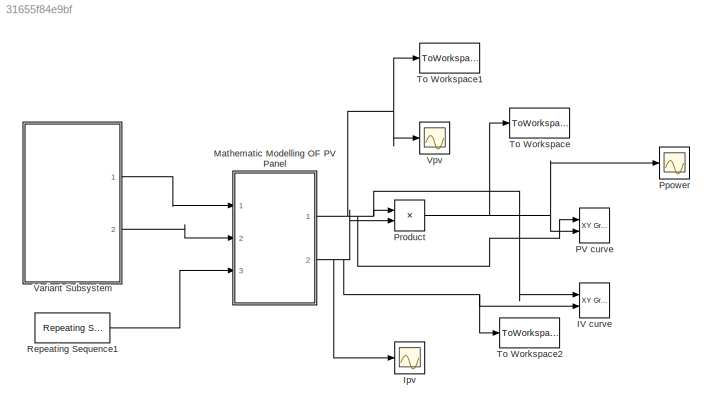
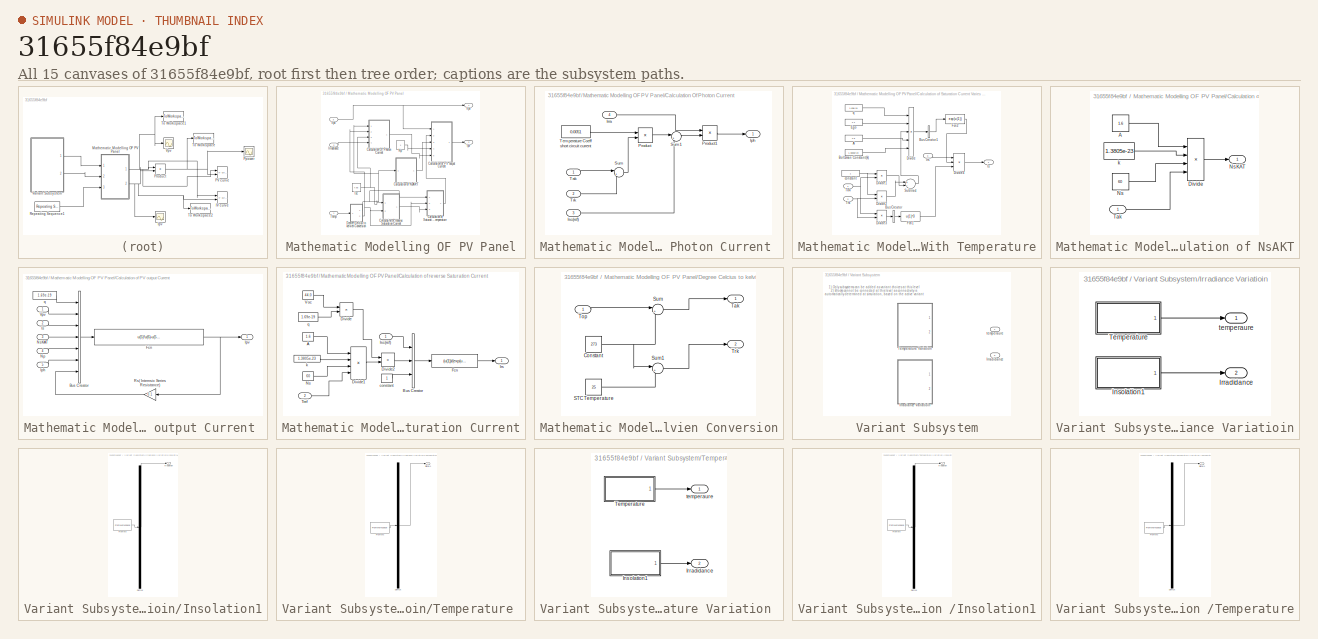
[diagram: thumbnail index - all 15 canvases of the model, root first then tree order]
MODEL slx_31655f84e9bf
KIND model
BLOCK [Reference] IV curve  REF=simulink/Sinks/XY Graph
  Ports = [2]
  SourceBlock = simulink/Sinks/XY Graph
  SourceType = XY scope.
  st = -1
  xmax = 45
  xmin = 0
  ymax = 20
  ymin = 0
BLOCK [Scope] Ipv
  Floating = off
  NumInputPorts = 1
  Ports = [1]
  SaveName = ScopeData1
  ShowLegends = off
BLOCK [SubSystem] Mathematic Modelling OF PV Panel
  Ports = [3, 2]
  RequestExecContextInheritance = off
BLOCK [SubSystem] Mathematic Modelling OF PV Panel/Calculation Of Photon Current 
  Ports = [4, 1]
  RequestExecContextInheritance = off
BLOCK [Outport] Mathematic Modelling OF PV Panel/Calculation Of Photon Current /Iph
  IconDisplay = Port number
BLOCK [Inport] Mathematic Modelling OF PV Panel/Calculation Of Photon Current /Irra
  IconDisplay = Port number
  Port = 4
BLOCK [Inport] Mathematic Modelling OF PV Panel/Calculation Of Photon Current /Isc(ref)
  IconDisplay = Port number
  Port = 3
BLOCK [Product] Mathematic Modelling OF PV Panel/Calculation Of Photon Current /Product
  InputSameDT = off
  OutDataTypeStr = Inherit: Inherit via internal rule
  Ports = [2, 1]
  RndMeth = Floor
  SaturateOnIntegerOverflow = off
BLOCK [Product] Mathematic Modelling OF PV Panel/Calculation Of Photon Current /Product1
  InputSameDT = off
  OutDataTypeStr = Inherit: Inherit via internal rule
  Ports = [2, 1]
  RndMeth = Floor
  SaturateOnIntegerOverflow = off
BLOCK [Sum] Mathematic Modelling OF PV Panel/Calculation Of Photon Current /Sum
  IconShape = round
  InputSameDT = off
  Inputs = |+-
  OutDataTypeStr = Inherit: Inherit via internal rule
  Ports = [2, 1]
  SaturateOnIntegerOverflow = off
BLOCK [Sum] Mathematic Modelling OF PV Panel/Calculation Of Photon Current /Sum1
  IconShape = round
  InputSameDT = off
  Inputs = |++
  OutDataTypeStr = Inherit: Inherit via internal rule
  Ports = [2, 1]
  SaturateOnIntegerOverflow = off
BLOCK [Inport] Mathematic Modelling OF PV Panel/Calculation Of Photon Current /Tak
  IconDisplay = Port number
BLOCK [Constant] Mathematic Modelling OF PV Panel/Calculation Of Photon Current /Temperature Coeff short circuit current 
  Value = 0.0051
BLOCK [Inport] Mathematic Modelling OF PV Panel/Calculation Of Photon Current /Trk
  IconDisplay = Port number
  Port = 2
BLOCK [SubSystem] Mathematic Modelling OF PV Panel/Calculation of NsAKT
  Ports = [1, 1]
  RequestExecContextInheritance = off
BLOCK [Constant] Mathematic Modelling OF PV Panel/Calculation of NsAKT/A
  Value = 1.6
BLOCK [Product] Mathematic Modelling OF PV Panel/Calculation of NsAKT/Divide
  InputSameDT = off
  Inputs = ****
  OutDataTypeStr = Inherit: Inherit via internal rule
  Ports = [4, 1]
  RndMeth = Floor
  SaturateOnIntegerOverflow = off
BLOCK [Constant] Mathematic Modelling OF PV Panel/Calculation of NsAKT/Ns
  Value = 60
BLOCK [Outport] Mathematic Modelling OF PV Panel/Calculation of NsAKT/NsKAT
  IconDisplay = Port number
BLOCK [Inport] Mathematic Modelling OF PV Panel/Calculation of NsAKT/Tak 
  IconDisplay = Port number
BLOCK [Constant] Mathematic Modelling OF PV Panel/Calculation of NsAKT/k
  Value = 1.3805e-23
BLOCK [SubSystem] Mathematic Modelling OF PV Panel/Calculation of PV output Current 
  Ports = [5, 1]
  RequestExecContextInheritance = off
BLOCK [BusCreator] Mathematic Modelling OF PV Panel/Calculation of PV output Current /Bus Creator
  DisplayOption = bar
  Inputs = 7
  Ports = [7, 1]
BLOCK [Fcn] Mathematic Modelling OF PV Panel/Calculation of PV output Current /Fcn
  Expr = u(5)*u(6)-u(5)*u(3)*(exp((u(1)*(u(2)+u(7)))/(u(4))) - 1)
BLOCK [Inport] Mathematic Modelling OF PV Panel/Calculation of PV output Current /Iph
  IconDisplay = Port number
  Port = 5
BLOCK [Outport] Mathematic Modelling OF PV Panel/Calculation of PV output Current /Ipv 
  IconDisplay = Port number
BLOCK [Inport] Mathematic Modelling OF PV Panel/Calculation of PV output Current /Is
  IconDisplay = Port number
  Port = 2
BLOCK [Inport] Mathematic Modelling OF PV Panel/Calculation of PV output Current /Np
  IconDisplay = Port number
  Port = 4
BLOCK [Inport] Mathematic Modelling OF PV Panel/Calculation of PV output Current /NsKAT
  IconDisplay = Port number
  Port = 3
BLOCK [Gain] Mathematic Modelling OF PV Panel/Calculation of PV output Current /Rs( Internsic Series Resistance)
  Gain = 0.1
  OutDataTypeStr = Inherit: Inherit via internal rule
  ParamDataTypeStr = Inherit: Inherit via internal rule
  SaturateOnIntegerOverflow = off
BLOCK [Inport] Mathematic Modelling OF PV Panel/Calculation of PV output Current /Vpv
  IconDisplay = Port number
BLOCK [Constant] Mathematic Modelling OF PV Panel/Calculation of PV output Current /q
  Value = 1.69e-19
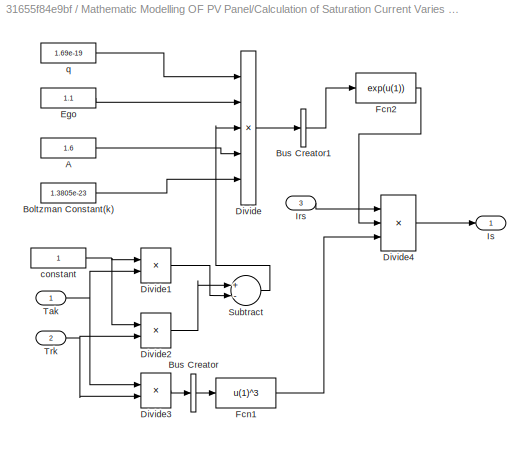
BLOCK [SubSystem] Mathematic Modelling OF PV Panel/Calculation of Saturation Current Varies With Temperature
  Ports = [3, 1]
  RequestExecContextInheritance = off
BLOCK [Constant] Mathematic Modelling OF PV Panel/Calculation of Saturation Current Varies With Temperature/A 
  Value = 1.6
BLOCK [Constant] Mathematic Modelling OF PV Panel/Calculation of Saturation Current Varies With Temperature/Boltzman Constant(k)
  Value = 1.3805e-23
BLOCK [BusCreator] Mathematic Modelling OF PV Panel/Calculation of Saturation Current Varies With Temperature/Bus Creator
  DisplayOption = bar
  Inputs = 1
  Ports = [1, 1]
BLOCK [BusCreator] Mathematic Modelling OF PV Panel/Calculation of Saturation Current Varies With Temperature/Bus Creator1
  DisplayOption = bar
  Inputs = 1
  Ports = [1, 1]
BLOCK [Product] Mathematic Modelling OF PV Panel/Calculation of Saturation Current Varies With Temperature/Divide
  InputSameDT = off
  Inputs = ***//
  OutDataTypeStr = Inherit: Inherit via internal rule
  Ports = [5, 1]
  RndMeth = Floor
  SaturateOnIntegerOverflow = off
BLOCK [Product] Mathematic Modelling OF PV Panel/Calculation of Saturation Current Varies With Temperature/Divide1
  InputSameDT = off
  Inputs = */
  OutDataTypeStr = Inherit: Inherit via internal rule
  Ports = [2, 1]
  RndMeth = Floor
  SaturateOnIntegerOverflow = off
BLOCK [Product] Mathematic Modelling OF PV Panel/Calculation of Saturation Current Varies With Temperature/Divide2
  InputSameDT = off
  Inputs = */
  OutDataTypeStr = Inherit: Inherit via internal rule
  Ports = [2, 1]
  RndMeth = Floor
  SaturateOnIntegerOverflow = off
BLOCK [Product] Mathematic Modelling OF PV Panel/Calculation of Saturation Current Varies With Temperature/Divide3
  InputSameDT = off
  Inputs = */
  OutDataTypeStr = Inherit: Inherit via internal rule
  Ports = [2, 1]
  RndMeth = Floor
  SaturateOnIntegerOverflow = off
BLOCK [Product] Mathematic Modelling OF PV Panel/Calculation of Saturation Current Varies With Temperature/Divide4
  InputSameDT = off
  Inputs = ***
  OutDataTypeStr = Inherit: Inherit via internal rule
  Ports = [3, 1]
  RndMeth = Floor
  SaturateOnIntegerOverflow = off
BLOCK [Constant] Mathematic Modelling OF PV Panel/Calculation of Saturation Current Varies With Temperature/Ego
  Value = 1.1
BLOCK [Fcn] Mathematic Modelling OF PV Panel/Calculation of Saturation Current Varies With Temperature/Fcn1
  Expr = u(1)^3
BLOCK [Fcn] Mathematic Modelling OF PV Panel/Calculation of Saturation Current Varies With Temperature/Fcn2
  Expr = exp(u(1))
BLOCK [Inport] Mathematic Modelling OF PV Panel/Calculation of Saturation Current Varies With Temperature/Irs 
  IconDisplay = Port number
  Port = 3
BLOCK [Outport] Mathematic Modelling OF PV Panel/Calculation of Saturation Current Varies With Temperature/Is
  IconDisplay = Port number
BLOCK [Sum] Mathematic Modelling OF PV Panel/Calculation of Saturation Current Varies With Temperature/Subtract
  InputSameDT = off
  Inputs = +-
  OutDataTypeStr = Inherit: Inherit via internal rule
  Ports = [2, 1]
  SaturateOnIntegerOverflow = off
BLOCK [Inport] Mathematic Modelling OF PV Panel/Calculation of Saturation Current Varies With Temperature/Tak
  IconDisplay = Port number
BLOCK [Inport] Mathematic Modelling OF PV Panel/Calculation of Saturation Current Varies With Temperature/Trk 
  IconDisplay = Port number
  Port = 2
BLOCK [Constant] Mathematic Modelling OF PV Panel/Calculation of Saturation Current Varies With Temperature/constant 
BLOCK [Constant] Mathematic Modelling OF PV Panel/Calculation of Saturation Current Varies With Temperature/q 
  Value = 1.69e-19
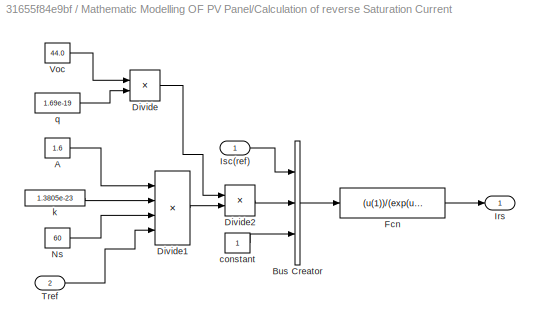
BLOCK [SubSystem] Mathematic Modelling OF PV Panel/Calculation of reverse Saturation Current
  Ports = [2, 1]
  RequestExecContextInheritance = off
BLOCK [Constant] Mathematic Modelling OF PV Panel/Calculation of reverse Saturation Current/A
  Value = 1.6
BLOCK [BusCreator] Mathematic Modelling OF PV Panel/Calculation of reverse Saturation Current/Bus Creator
  DisplayOption = bar
  Inputs = 3
  Ports = [3, 1]
BLOCK [Product] Mathematic Modelling OF PV Panel/Calculation of reverse Saturation Current/Divide
  InputSameDT = off
  Inputs = **
  OutDataTypeStr = Inherit: Inherit via internal rule
  Ports = [2, 1]
  RndMeth = Floor
  SaturateOnIntegerOverflow = off
BLOCK [Product] Mathematic Modelling OF PV Panel/Calculation of reverse Saturation Current/Divide1
  InputSameDT = off
  Inputs = ****
  OutDataTypeStr = Inherit: Inherit via internal rule
  Ports = [4, 1]
  RndMeth = Floor
  SaturateOnIntegerOverflow = off
BLOCK [Product] Mathematic Modelling OF PV Panel/Calculation of reverse Saturation Current/Divide2
  InputSameDT = off
  Inputs = */
  OutDataTypeStr = Inherit: Inherit via internal rule
  Ports = [2, 1]
  RndMeth = Floor
  SaturateOnIntegerOverflow = off
BLOCK [Fcn] Mathematic Modelling OF PV Panel/Calculation of reverse Saturation Current/Fcn
  Expr = (u(1))/(exp(u(2))-u(3))
BLOCK [Outport] Mathematic Modelling OF PV Panel/Calculation of reverse Saturation Current/Irs
  IconDisplay = Port number
BLOCK [Inport] Mathematic Modelling OF PV Panel/Calculation of reverse Saturation Current/Isc(ref) 
  IconDisplay = Port number
BLOCK [Constant] Mathematic Modelling OF PV Panel/Calculation of reverse Saturation Current/Ns
  Value = 60
BLOCK [Inport] Mathematic Modelling OF PV Panel/Calculation of reverse Saturation Current/Tref 
  IconDisplay = Port number
  Port = 2
BLOCK [Constant] Mathematic Modelling OF PV Panel/Calculation of reverse Saturation Current/Voc
  Value = 44.0
BLOCK [Constant] Mathematic Modelling OF PV Panel/Calculation of reverse Saturation Current/constant 
BLOCK [Constant] Mathematic Modelling OF PV Panel/Calculation of reverse Saturation Current/k
  Value = 1.3805e-23
BLOCK [Constant] Mathematic Modelling OF PV Panel/Calculation of reverse Saturation Current/q
  Value = 1.69e-19
BLOCK [SubSystem] Mathematic Modelling OF PV Panel/Degree Celcius to kelvien Conversion
  Ports = [1, 2]
  RequestExecContextInheritance = off
BLOCK [Constant] Mathematic Modelling OF PV Panel/Degree Celcius to kelvien Conversion/Constant
  Value = 273
BLOCK [Constant] Mathematic Modelling OF PV Panel/Degree Celcius to kelvien Conversion/STC Temperature
  Value = 25
BLOCK [Sum] Mathematic Modelling OF PV Panel/Degree Celcius to kelvien Conversion/Sum
  IconShape = round
  InputSameDT = off
  Inputs = |++
  OutDataTypeStr = Inherit: Inherit via internal rule
  Ports = [2, 1]
  SaturateOnIntegerOverflow = off
BLOCK [Sum] Mathematic Modelling OF PV Panel/Degree Celcius to kelvien Conversion/Sum1
  IconShape = round
  InputSameDT = off
  Inputs = |++
  OutDataTypeStr = Inherit: Inherit via internal rule
  Ports = [2, 1]
  SaturateOnIntegerOverflow = off
BLOCK [Outport] Mathematic Modelling OF PV Panel/Degree Celcius to kelvien Conversion/Tak
  IconDisplay = Port number
BLOCK [Inport] Mathematic Modelling OF PV Panel/Degree Celcius to kelvien Conversion/Top 
  IconDisplay = Port number
BLOCK [Outport] Mathematic Modelling OF PV Panel/Degree Celcius to kelvien Conversion/Trk
  IconDisplay = Port number
  Port = 2
BLOCK [Outport] Mathematic Modelling OF PV Panel/Ipv
  IconDisplay = Port number
  Port = 2
BLOCK [Inport] Mathematic Modelling OF PV Panel/Irradiance
  IconDisplay = Port number
  Port = 2
BLOCK [Constant] Mathematic Modelling OF PV Panel/Isc
  Value = 7.58
BLOCK [Constant] Mathematic Modelling OF PV Panel/Np
BLOCK [Inport] Mathematic Modelling OF PV Panel/Temp
  IconDisplay = Port number
BLOCK [Inport] Mathematic Modelling OF PV Panel/Vpv
  IconDisplay = Port number
  Port = 3
BLOCK [Outport] Mathematic Modelling OF PV Panel/Vpv 
  IconDisplay = Port number
BLOCK [Reference] PV curve  REF=simulink/Sinks/XY Graph
  Ports = [2]
  SourceBlock = simulink/Sinks/XY Graph
  SourceType = XY scope.
  st = -1
  xmax = 45
  xmin = 0
  ymax = 300
  ymin = 0
BLOCK [Scope] Ppower 
  Floating = off
  NumInputPorts = 1
  Ports = [1]
  SaveName = ScopeData2
  ShowLegends = off
BLOCK [Product] Product
  InputSameDT = off
  OutDataTypeStr = Inherit: Inherit via internal rule
  Ports = [2, 1]
  RndMeth = Floor
  SaturateOnIntegerOverflow = off
BLOCK [Reference] Repeating Sequence1  REF=simulink/Sources/Repeating
Sequence
  Ports = [0, 1]
  SourceBlock = simulink/Sources/Repeating\nSequence
  SourceType = Repeating table
  rep_seq_t = [0 2 4]
  rep_seq_y = [0 45 0]
BLOCK [ToWorkspace] To Workspace
  FixptAsFi = on
  MaxDataPoints = inf
  Ports = [1]
  SampleTime = -1
  Save2DSignal = 3-D array (concatenate along third dimension)
  SaveFormat = Timeseries
  VariableName = Ppv
BLOCK [ToWorkspace] To Workspace1
  FixptAsFi = on
  MaxDataPoints = inf
  Ports = [1]
  SampleTime = -1
  Save2DSignal = 3-D array (concatenate along third dimension)
  SaveFormat = Timeseries
  VariableName = Vpv
BLOCK [ToWorkspace] To Workspace2
  FixptAsFi = on
  MaxDataPoints = inf
  Ports = [1]
  SampleTime = -1
  Save2DSignal = 3-D array (concatenate along third dimension)
  SaveFormat = Timeseries
  VariableName = Ipv
BLOCK [SubSystem] Variant Subsystem
  Ports = [0, 2]
  RequestExecContextInheritance = off
  Variant = on
BLOCK [SubSystem] Variant Subsystem/Irradiance Variatioin
  Ports = [0, 2]
  RequestExecContextInheritance = off
  TreatAsAtomicUnit = on
  VariantControl = Irradiance
BLOCK [SubSystem] Variant Subsystem/Irradiance Variatioin/Insolation1
  ClipboardFcn = sigbuilder_block('clipboard');
  CloseFcn = sigbuilder_block('close');
  ContinueFcn = sigbuilder_block('continue')
  CopyFcn = sigbuilder_block('copy');
  DeleteFcn = sigbuilder_block('delete');
  LoadFcn = sigbuilder_block('load');
  MaskHideContents = on
  ModelCloseFcn = sigbuilder_block('modelClose');
  NameChangeFcn = sigbuilder_block('namechange');
  OpenFcn = sigbuilder_block('open',[211.5 118.5 550.5 394.5 ]);
  PauseFcn = sigbuilder_block('pause')
  Ports = [0, 1]
  PreSaveFcn = sigbuilder_block('preSave');
  RequestExecContextInheritance = off
  StartFcn = sigbuilder_block('start');
  StopFcn = sigbuilder_block('stop');
  Tag = STV Subsys
BLOCK [Demux] Variant Subsystem/Irradiance Variatioin/Insolation1/Demux
  Outputs = 1
  Ports = [1, 1]
  Tag = STV Demux
BLOCK [FromWorkspace] Variant Subsystem/Irradiance Variatioin/Insolation1/FromWs
  SampleTime = 0
  Tag = STV FromWs
  VariableName = tuvar
  ZeroCross = on
BLOCK [Outport] Variant Subsystem/Irradiance Variatioin/Insolation1/irradiation
  IconDisplay = Port number
  Tag = STV Outport
BLOCK [Outport] Variant Subsystem/Irradiance Variatioin/Irradidance 
  IconDisplay = Port number
  Port = 2
BLOCK [SubSystem] Variant Subsystem/Irradiance Variatioin/Temperature 
  ClipboardFcn = sigbuilder_block('clipboard');
  CloseFcn = sigbuilder_block('close');
  ContinueFcn = sigbuilder_block('continue');
  CopyFcn = sigbuilder_block('copy');
  DeleteFcn = sigbuilder_block('delete');
  LoadFcn = sigbuilder_block('load');
  MaskHideContents = on
  ModelCloseFcn = sigbuilder_block('modelClose');
  NameChangeFcn = sigbuilder_block('namechange');
  OpenFcn = sigbuilder_block('open',[351 -51.75 543 385.5 ]);
  PauseFcn = sigbuilder_block('pause');
  Ports = [0, 1]
  PreSaveFcn = sigbuilder_block('preSave');
  RequestExecContextInheritance = off
  StartFcn = sigbuilder_block('start');
  StopFcn = sigbuilder_block('stop');
  Tag = STV Subsys
BLOCK [Demux] Variant Subsystem/Irradiance Variatioin/Temperature /Demux
  Outputs = 1
  Ports = [1, 1]
  Tag = STV Demux
BLOCK [FromWorkspace] Variant Subsystem/Irradiance Variatioin/Temperature /FromWs
  SampleTime = 0
  Tag = STV FromWs
  VariableName = tuvar
  ZeroCross = on
BLOCK [Outport] Variant Subsystem/Irradiance Variatioin/Temperature /Signal 1
  IconDisplay = Port number
  Tag = STV Outport
BLOCK [Outport] Variant Subsystem/Irradiance Variatioin/temperaure
  IconDisplay = Port number
BLOCK [Outport] Variant Subsystem/Irradidance 
  IconDisplay = Port number
  Port = 2
BLOCK [SubSystem] Variant Subsystem/Temperature Variation 
  Ports = [0, 2]
  RequestExecContextInheritance = off
  TreatAsAtomicUnit = on
  VariantControl = Temperature
BLOCK [SubSystem] Variant Subsystem/Temperature Variation /Insolation1
  ClipboardFcn = sigbuilder_block('clipboard');
  CloseFcn = sigbuilder_block('close');
  ContinueFcn = sigbuilder_block('continue')
  CopyFcn = sigbuilder_block('copy');
  DeleteFcn = sigbuilder_block('delete');
  LoadFcn = sigbuilder_block('load');
  MaskHideContents = on
  ModelCloseFcn = sigbuilder_block('modelClose');
  NameChangeFcn = sigbuilder_block('namechange');
  OpenFcn = sigbuilder_block('open',[557.25 17.25 550.5 394.5 ]);
  PauseFcn = sigbuilder_block('pause')
  Ports = [0, 1]
  PreSaveFcn = sigbuilder_block('preSave');
  RequestExecContextInheritance = off
  StartFcn = sigbuilder_block('start');
  StopFcn = sigbuilder_block('stop');
  Tag = STV Subsys
BLOCK [Demux] Variant Subsystem/Temperature Variation /Insolation1/Demux
  Outputs = 1
  Ports = [1, 1]
  Tag = STV Demux
BLOCK [FromWorkspace] Variant Subsystem/Temperature Variation /Insolation1/FromWs
  SampleTime = 0
  Tag = STV FromWs
  VariableName = tuvar
  ZeroCross = on
BLOCK [Outport] Variant Subsystem/Temperature Variation /Insolation1/irradiation
  IconDisplay = Port number
  Tag = STV Outport
BLOCK [Outport] Variant Subsystem/Temperature Variation /Irradidance 
  IconDisplay = Port number
  Port = 2
BLOCK [SubSystem] Variant Subsystem/Temperature Variation /Temperature
  ClipboardFcn = sigbuilder_block('clipboard');
  CloseFcn = sigbuilder_block('close');
  ContinueFcn = sigbuilder_block('continue');
  CopyFcn = sigbuilder_block('copy');
  DeleteFcn = sigbuilder_block('delete');
  LoadFcn = sigbuilder_block('load');
  MaskHideContents = on
  ModelCloseFcn = sigbuilder_block('modelClose');
  NameChangeFcn = sigbuilder_block('namechange');
  OpenFcn = sigbuilder_block('open',[437.25 180 550.5 395.25 ]);
  PauseFcn = sigbuilder_block('pause');
  Ports = [0, 1]
  PreSaveFcn = sigbuilder_block('preSave');
  RequestExecContextInheritance = off
  StartFcn = sigbuilder_block('start');
  StopFcn = sigbuilder_block('stop');
  Tag = STV Subsys
BLOCK [Demux] Variant Subsystem/Temperature Variation /Temperature/Demux
  Outputs = 1
  Ports = [1, 1]
  Tag = STV Demux
BLOCK [FromWorkspace] Variant Subsystem/Temperature Variation /Temperature/FromWs
  SampleTime = 0
  Tag = STV FromWs
  VariableName = tuvar
  ZeroCross = on
BLOCK [Outport] Variant Subsystem/Temperature Variation /Temperature/Signal 1
  IconDisplay = Port number
  Tag = STV Outport
BLOCK [Outport] Variant Subsystem/Temperature Variation /temperaure
  IconDisplay = Port number
BLOCK [Outport] Variant Subsystem/temperaure
  IconDisplay = Port number
BLOCK [Scope] Vpv
  Floating = off
  NumInputPorts = 1
  Ports = [1]
  ShowLegends = off
ANNOTATION Variant Subsystem: 1) Only subsystems can be added as variant choices at this level 2) Blocks cannot be connected at this level as connectivity is automatically determined at simulation, based on the active variant
LINE Mathematic Modelling OF PV Panel/Calculation Of Photon Current /Irra:1 -> Mathematic Modelling OF PV Panel/Calculation Of Photon Current /Product1:1
LINE Mathematic Modelling OF PV Panel/Calculation Of Photon Current /Isc(ref):1 -> Mathematic Modelling OF PV Panel/Calculation Of Photon Current /Sum1:2
LINE Mathematic Modelling OF PV Panel/Calculation Of Photon Current /Product1:1 -> Mathematic Modelling OF PV Panel/Calculation Of Photon Current /Iph:1
LINE Mathematic Modelling OF PV Panel/Calculation Of Photon Current /Product:1 -> Mathematic Modelling OF PV Panel/Calculation Of Photon Current /Sum1:1
LINE Mathematic Modelling OF PV Panel/Calculation Of Photon Current /Sum1:1 -> Mathematic Modelling OF PV Panel/Calculation Of Photon Current /Product1:2
LINE Mathematic Modelling OF PV Panel/Calculation Of Photon Current /Sum:1 -> Mathematic Modelling OF PV Panel/Calculation Of Photon Current /Product:2
LINE Mathematic Modelling OF PV Panel/Calculation Of Photon Current /Tak:1 -> Mathematic Modelling OF PV Panel/Calculation Of Photon Current /Sum:1
LINE Mathematic Modelling OF PV Panel/Calculation Of Photon Current /Temperature Coeff short circuit current :1 -> Mathematic Modelling OF PV Panel/Calculation Of Photon Current /Product:1
LINE Mathematic Modelling OF PV Panel/Calculation Of Photon Current /Trk:1 -> Mathematic Modelling OF PV Panel/Calculation Of Photon Current /Sum:2
LINE Mathematic Modelling OF PV Panel/Calculation Of Photon Current :1 -> Mathematic Modelling OF PV Panel/Calculation of PV output Current :5
LINE Mathematic Modelling OF PV Panel/Calculation of NsAKT/A:1 -> Mathematic Modelling OF PV Panel/Calculation of NsAKT/Divide:1
LINE Mathematic Modelling OF PV Panel/Calculation of NsAKT/Divide:1 -> Mathematic Modelling OF PV Panel/Calculation of NsAKT/NsKAT:1
LINE Mathematic Modelling OF PV Panel/Calculation of NsAKT/Ns:1 -> Mathematic Modelling OF PV Panel/Calculation of NsAKT/Divide:3
LINE Mathematic Modelling OF PV Panel/Calculation of NsAKT/Tak :1 -> Mathematic Modelling OF PV Panel/Calculation of NsAKT/Divide:4
LINE Mathematic Modelling OF PV Panel/Calculation of NsAKT/k:1 -> Mathematic Modelling OF PV Panel/Calculation of NsAKT/Divide:2
LINE Mathematic Modelling OF PV Panel/Calculation of NsAKT:1 -> Mathematic Modelling OF PV Panel/Calculation of PV output Current :3
LINE Mathematic Modelling OF PV Panel/Calculation of PV output Current /Bus Creator:1 -> Mathematic Modelling OF PV Panel/Calculation of PV output Current /Fcn:1
NET Mathematic Modelling OF PV Panel/Calculation of PV output Current /Fcn:1 -> Mathematic Modelling OF PV Panel/Calculation of PV output Current /Ipv :1, Mathematic Modelling OF PV Panel/Calculation of PV output Current /Rs( Internsic Series Resistance):1
LINE Mathematic Modelling OF PV Panel/Calculation of PV output Current /Iph:1 -> Mathematic Modelling OF PV Panel/Calculation of PV output Current /Bus Creator:6
LINE Mathematic Modelling OF PV Panel/Calculation of PV output Current /Is:1 -> Mathematic Modelling OF PV Panel/Calculation of PV output Current /Bus Creator:3
LINE Mathematic Modelling OF PV Panel/Calculation of PV output Current /Np:1 -> Mathematic Modelling OF PV Panel/Calculation of PV output Current /Bus Creator:5
LINE Mathematic Modelling OF PV Panel/Calculation of PV output Current /NsKAT:1 -> Mathematic Modelling OF PV Panel/Calculation of PV output Current /Bus Creator:4
LINE Mathematic Modelling OF PV Panel/Calculation of PV output Current /Rs( Internsic Series Resistance):1 -> Mathematic Modelling OF PV Panel/Calculation of PV output Current /Bus Creator:7
LINE Mathematic Modelling OF PV Panel/Calculation of PV output Current /Vpv:1 -> Mathematic Modelling OF PV Panel/Calculation of PV output Current /Bus Creator:2
LINE Mathematic Modelling OF PV Panel/Calculation of PV output Current /q:1 -> Mathematic Modelling OF PV Panel/Calculation of PV output Current /Bus Creator:1
LINE Mathematic Modelling OF PV Panel/Calculation of PV output Current :1 -> Mathematic Modelling OF PV Panel/Ipv:1
LINE Mathematic Modelling OF PV Panel/Calculation of Saturation Current Varies With Temperature/A :1 -> Mathematic Modelling OF PV Panel/Calculation of Saturation Current Varies With Temperature/Divide:4
LINE Mathematic Modelling OF PV Panel/Calculation of Saturation Current Varies With Temperature/Boltzman Constant(k):1 -> Mathematic Modelling OF PV Panel/Calculation of Saturation Current Varies With Temperature/Divide:5
LINE Mathematic Modelling OF PV Panel/Calculation of Saturation Current Varies With Temperature/Bus Creator1:1 -> Mathematic Modelling OF PV Panel/Calculation of Saturation Current Varies With Temperature/Fcn2:1
LINE Mathematic Modelling OF PV Panel/Calculation of Saturation Current Varies With Temperature/Bus Creator:1 -> Mathematic Modelling OF PV Panel/Calculation of Saturation Current Varies With Temperature/Fcn1:1
LINE Mathematic Modelling OF PV Panel/Calculation of Saturation Current Varies With Temperature/Divide1:1 -> Mathematic Modelling OF PV Panel/Calculation of Saturation Current Varies With Temperature/Subtract:2
LINE Mathematic Modelling OF PV Panel/Calculation of Saturation Current Varies With Temperature/Divide2:1 -> Mathematic Modelling OF PV Panel/Calculation of Saturation Current Varies With Temperature/Subtract:1
LINE Mathematic Modelling OF PV Panel/Calculation of Saturation Current Varies With Temperature/Divide3:1 -> Mathematic Modelling OF PV Panel/Calculation of Saturation Current Varies With Temperature/Bus Creator:1
LINE Mathematic Modelling OF PV Panel/Calculation of Saturation Current Varies With Temperature/Divide4:1 -> Mathematic Modelling OF PV Panel/Calculation of Saturation Current Varies With Temperature/Is:1
LINE Mathematic Modelling OF PV Panel/Calculation of Saturation Current Varies With Temperature/Divide:1 -> Mathematic Modelling OF PV Panel/Calculation of Saturation Current Varies With Temperature/Bus Creator1:1
LINE Mathematic Modelling OF PV Panel/Calculation of Saturation Current Varies With Temperature/Ego:1 -> Mathematic Modelling OF PV Panel/Calculation of Saturation Current Varies With Temperature/Divide:2
LINE Mathematic Modelling OF PV Panel/Calculation of Saturation Current Varies With Temperature/Fcn1:1 -> Mathematic Modelling OF PV Panel/Calculation of Saturation Current Varies With Temperature/Divide4:3
LINE Mathematic Modelling OF PV Panel/Calculation of Saturation Current Varies With Temperature/Fcn2:1 -> Mathematic Modelling OF PV Panel/Calculation of Saturation Current Varies With Temperature/Divide4:2
LINE Mathematic Modelling OF PV Panel/Calculation of Saturation Current Varies With Temperature/Irs :1 -> Mathematic Modelling OF PV Panel/Calculation of Saturation Current Varies With Temperature/Divide4:1
LINE Mathematic Modelling OF PV Panel/Calculation of Saturation Current Varies With Temperature/Subtract:1 -> Mathematic Modelling OF PV Panel/Calculation of Saturation Current Varies With Temperature/Divide:3
NET Mathematic Modelling OF PV Panel/Calculation of Saturation Current Varies With Temperature/Tak:1 -> Mathematic Modelling OF PV Panel/Calculation of Saturation Current Varies With Temperature/Divide1:2, Mathematic Modelling OF PV Panel/Calculation of Saturation Current Varies With Temperature/Divide3:1
NET Mathematic Modelling OF PV Panel/Calculation of Saturation Current Varies With Temperature/Trk :1 -> Mathematic Modelling OF PV Panel/Calculation of Saturation Current Varies With Temperature/Divide2:2, Mathematic Modelling OF PV Panel/Calculation of Saturation Current Varies With Temperature/Divide3:2
NET Mathematic Modelling OF PV Panel/Calculation of Saturation Current Varies With Temperature/constant :1 -> Mathematic Modelling OF PV Panel/Calculation of Saturation Current Varies With Temperature/Divide1:1, Mathematic Modelling OF PV Panel/Calculation of Saturation Current Varies With Temperature/Divide2:1
LINE Mathematic Modelling OF PV Panel/Calculation of Saturation Current Varies With Temperature/q :1 -> Mathematic Modelling OF PV Panel/Calculation of Saturation Current Varies With Temperature/Divide:1
LINE Mathematic Modelling OF PV Panel/Calculation of Saturation Current Varies With Temperature:1 -> Mathematic Modelling OF PV Panel/Calculation of PV output Current :2
LINE Mathematic Modelling OF PV Panel/Calculation of reverse Saturation Current/A:1 -> Mathematic Modelling OF PV Panel/Calculation of reverse Saturation Current/Divide1:1
LINE Mathematic Modelling OF PV Panel/Calculation of reverse Saturation Current/Bus Creator:1 -> Mathematic Modelling OF PV Panel/Calculation of reverse Saturation Current/Fcn:1
LINE Mathematic Modelling OF PV Panel/Calculation of reverse Saturation Current/Divide1:1 -> Mathematic Modelling OF PV Panel/Calculation of reverse Saturation Current/Divide2:2
LINE Mathematic Modelling OF PV Panel/Calculation of reverse Saturation Current/Divide2:1 -> Mathematic Modelling OF PV Panel/Calculation of reverse Saturation Current/Bus Creator:2
LINE Mathematic Modelling OF PV Panel/Calculation of reverse Saturation Current/Divide:1 -> Mathematic Modelling OF PV Panel/Calculation of reverse Saturation Current/Divide2:1
LINE Mathematic Modelling OF PV Panel/Calculation of reverse Saturation Current/Fcn:1 -> Mathematic Modelling OF PV Panel/Calculation of reverse Saturation Current/Irs:1
LINE Mathematic Modelling OF PV Panel/Calculation of reverse Saturation Current/Isc(ref) :1 -> Mathematic Modelling OF PV Panel/Calculation of reverse Saturation Current/Bus Creator:1
LINE Mathematic Modelling OF PV Panel/Calculation of reverse Saturation Current/Ns:1 -> Mathematic Modelling OF PV Panel/Calculation of reverse Saturation Current/Divide1:3
LINE Mathematic Modelling OF PV Panel/Calculation of reverse Saturation Current/Tref :1 -> Mathematic Modelling OF PV Panel/Calculation of reverse Saturation Current/Divide1:4
LINE Mathematic Modelling OF PV Panel/Calculation of reverse Saturation Current/Voc:1 -> Mathematic Modelling OF PV Panel/Calculation of reverse Saturation Current/Divide:1
LINE Mathematic Modelling OF PV Panel/Calculation of reverse Saturation Current/constant :1 -> Mathematic Modelling OF PV Panel/Calculation of reverse Saturation Current/Bus Creator:3
LINE Mathematic Modelling OF PV Panel/Calculation of reverse Saturation Current/k:1 -> Mathematic Modelling OF PV Panel/Calculation of reverse Saturation Current/Divide1:2
LINE Mathematic Modelling OF PV Panel/Calculation of reverse Saturation Current/q:1 -> Mathematic Modelling OF PV Panel/Calculation of reverse Saturation Current/Divide:2
LINE Mathematic Modelling OF PV Panel/Calculation of reverse Saturation Current:1 -> Mathematic Modelling OF PV Panel/Calculation of Saturation Current Varies With Temperature:3
NET Mathematic Modelling OF PV Panel/Degree Celcius to kelvien Conversion/Constant:1 -> Mathematic Modelling OF PV Panel/Degree Celcius to kelvien Conversion/Sum1:1, Mathematic Modelling OF PV Panel/Degree Celcius to kelvien Conversion/Sum:2
LINE Mathematic Modelling OF PV Panel/Degree Celcius to kelvien Conversion/STC Temperature:1 -> Mathematic Modelling OF PV Panel/Degree Celcius to kelvien Conversion/Sum1:2
LINE Mathematic Modelling OF PV Panel/Degree Celcius to kelvien Conversion/Sum1:1 -> Mathematic Modelling OF PV Panel/Degree Celcius to kelvien Conversion/Trk:1
LINE Mathematic Modelling OF PV Panel/Degree Celcius to kelvien Conversion/Sum:1 -> Mathematic Modelling OF PV Panel/Degree Celcius to kelvien Conversion/Tak:1
LINE Mathematic Modelling OF PV Panel/Degree Celcius to kelvien Conversion/Top :1 -> Mathematic Modelling OF PV Panel/Degree Celcius to kelvien Conversion/Sum:1
NET Mathematic Modelling OF PV Panel/Degree Celcius to kelvien Conversion:1 -> Mathematic Modelling OF PV Panel/Calculation Of Photon Current :1, Mathematic Modelling OF PV Panel/Calculation of NsAKT:1, Mathematic Modelling OF PV Panel/Calculation of Saturation Current Varies With Temperature:1
NET Mathematic Modelling OF PV Panel/Degree Celcius to kelvien Conversion:2 -> Mathematic Modelling OF PV Panel/Calculation Of Photon Current :2, Mathematic Modelling OF PV Panel/Calculation of Saturation Current Varies With Temperature:2, Mathematic Modelling OF PV Panel/Calculation of reverse Saturation Current:2
LINE Mathematic Modelling OF PV Panel/Irradiance:1 -> Mathematic Modelling OF PV Panel/Calculation Of Photon Current :4
NET Mathematic Modelling OF PV Panel/Isc:1 -> Mathematic Modelling OF PV Panel/Calculation Of Photon Current :3, Mathematic Modelling OF PV Panel/Calculation of reverse Saturation Current:1
LINE Mathematic Modelling OF PV Panel/Np:1 -> Mathematic Modelling OF PV Panel/Calculation of PV output Current :4
LINE Mathematic Modelling OF PV Panel/Temp:1 -> Mathematic Modelling OF PV Panel/Degree Celcius to kelvien Conversion:1
NET Mathematic Modelling OF PV Panel/Vpv:1 -> Mathematic Modelling OF PV Panel/Calculation of PV output Current :1, Mathematic Modelling OF PV Panel/Vpv :1
NET Mathematic Modelling OF PV Panel:1 -> IV curve:1, PV curve:1, Product:1, To Workspace1:1, Vpv:1
NET Mathematic Modelling OF PV Panel:2 -> IV curve:2, Ipv:1, Product:2, To Workspace2:1
NET Product:1 -> PV curve:2, Ppower :1, To Workspace:1
LINE Repeating Sequence1:1 -> Mathematic Modelling OF PV Panel:3
LINE Variant Subsystem/Irradiance Variatioin/Insolation1:1 -> Variant Subsystem/Irradiance Variatioin/Irradidance :1
LINE Variant Subsystem/Irradiance Variatioin/Temperature :1 -> Variant Subsystem/Irradiance Variatioin/temperaure:1
LINE Variant Subsystem/Temperature Variation /Insolation1:1 -> Variant Subsystem/Temperature Variation /Irradidance :1
LINE Variant Subsystem/Temperature Variation /Temperature:1 -> Variant Subsystem/Temperature Variation /temperaure:1
LINE Variant Subsystem:1 -> Mathematic Modelling OF PV Panel:1
LINE Variant Subsystem:2 -> Mathematic Modelling OF PV Panel:2
note: NET lines group one-source signal fan-out (src -> all destinations, sorted); 1:1 wires keep LINE
